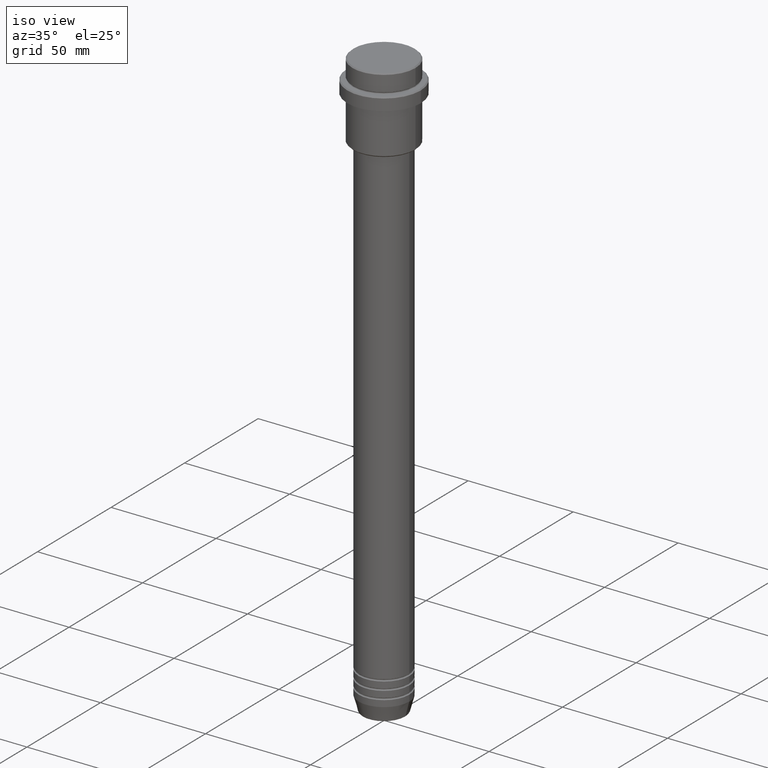
[diagram: clean part render]
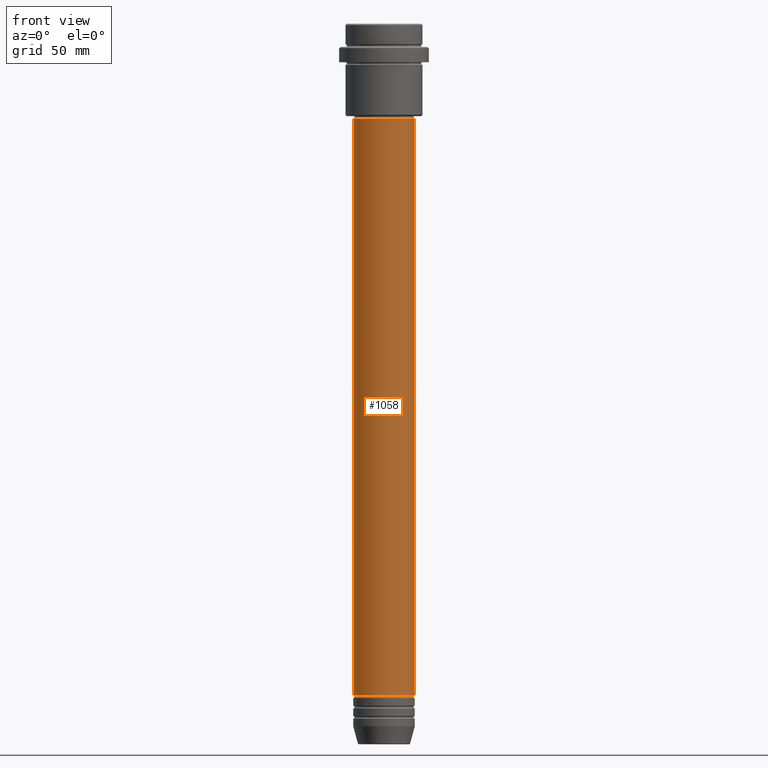
[diagram: tour spotlight — one face highlighted and labeled with its STEP entity id]
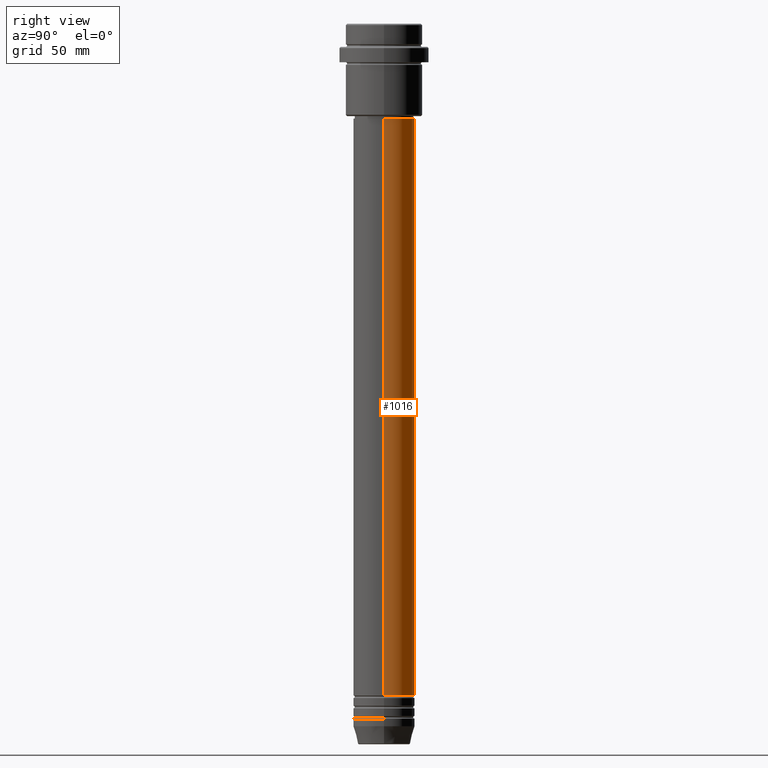
[diagram: tour spotlight — one face highlighted and labeled with its STEP entity id]
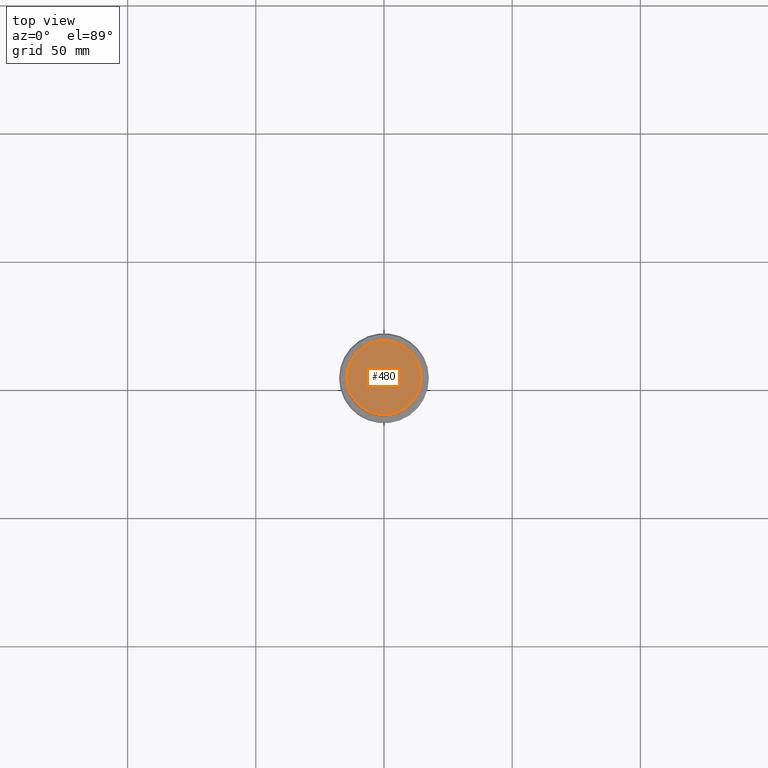
[diagram: tour spotlight — one face highlighted and labeled with its STEP entity id]
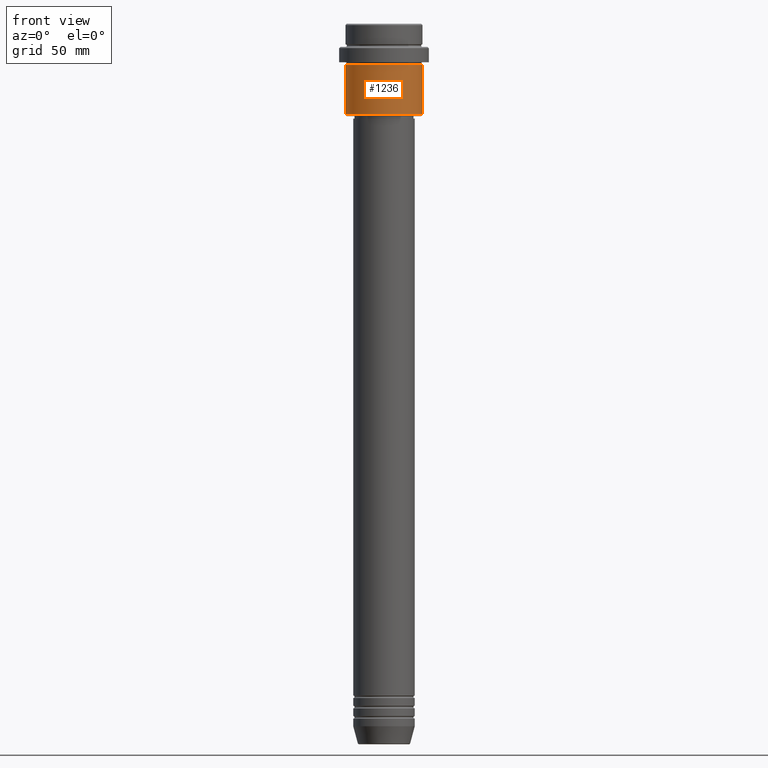
[diagram: tour spotlight — one face highlighted and labeled with its STEP entity id]
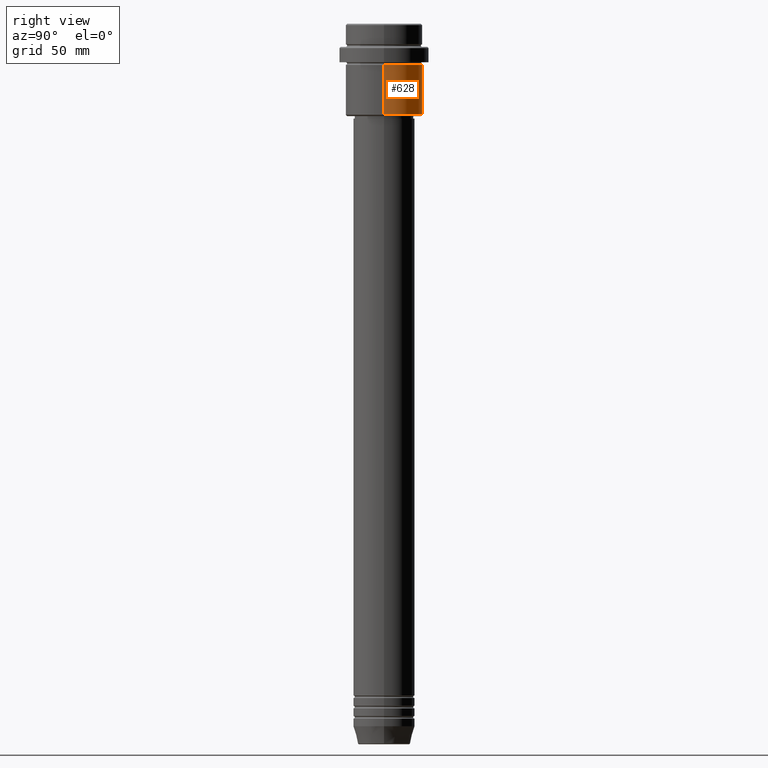
[diagram: tour spotlight — one face highlighted and labeled with its STEP entity id]
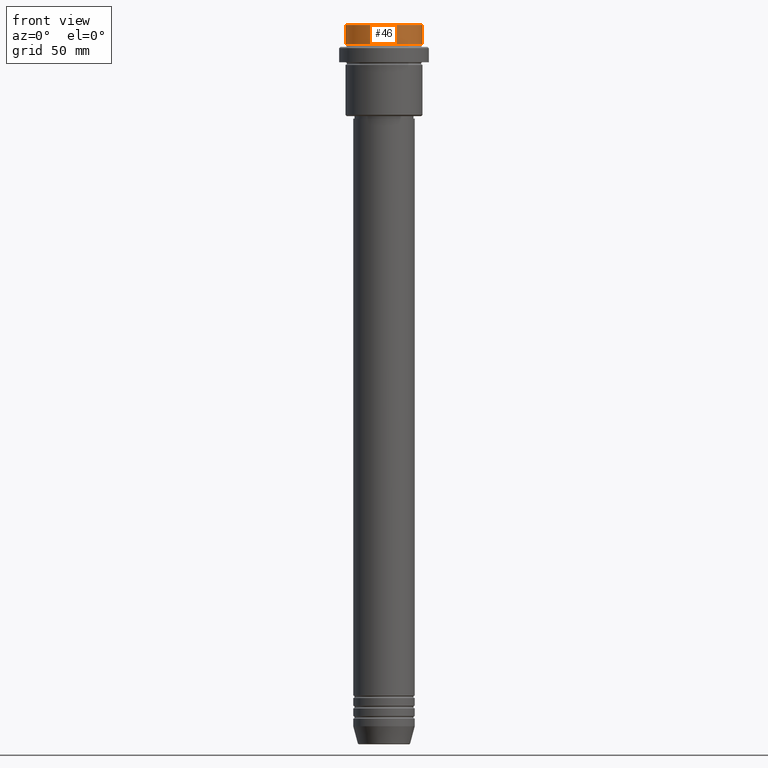
[diagram: tour spotlight — one face highlighted and labeled with its STEP entity id]
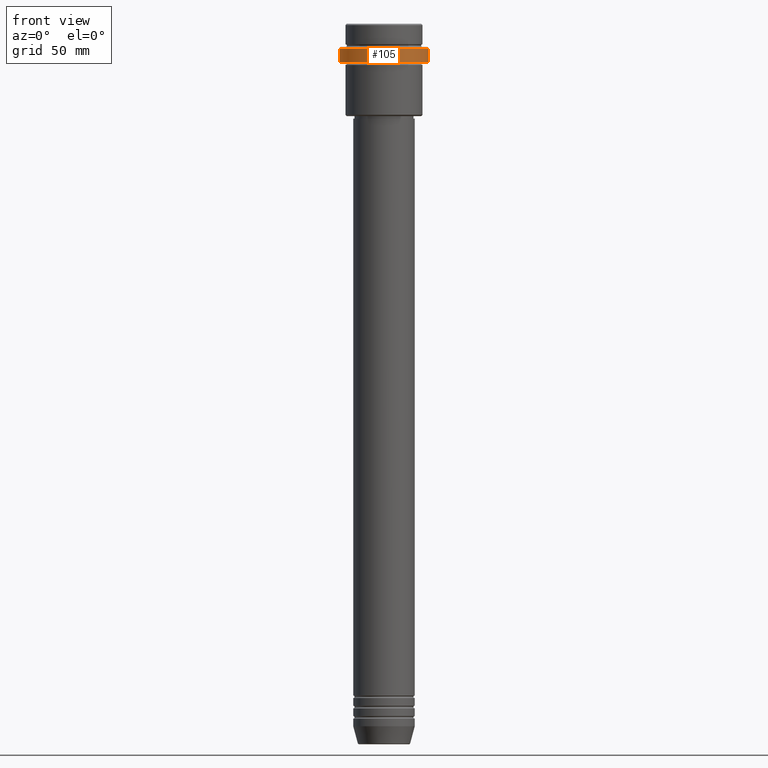
[diagram: tour spotlight — one face highlighted and labeled with its STEP entity id]
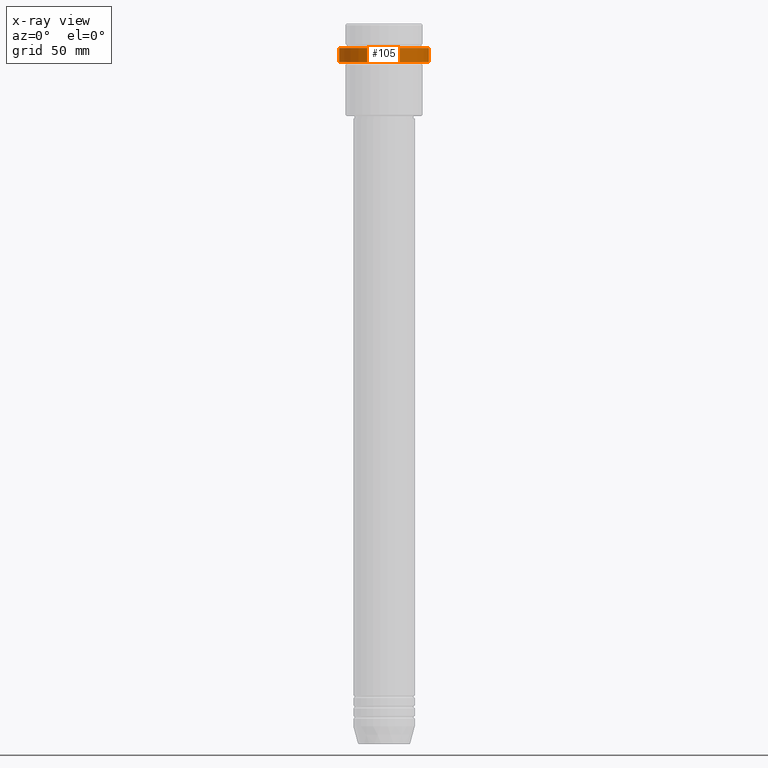
[diagram: x-ray of the same camera — body ghosted, this tour face saturated]
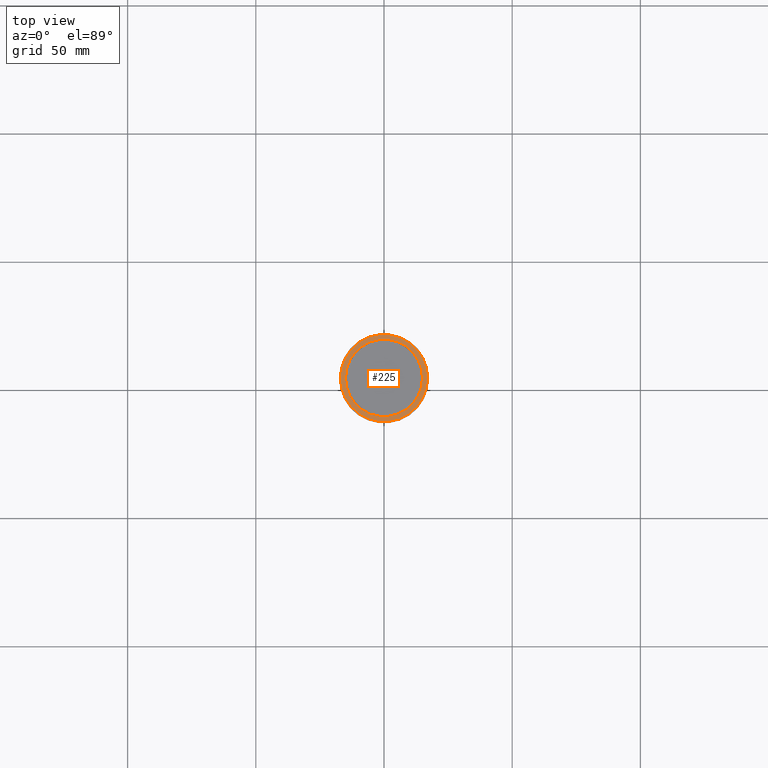
[diagram: tour spotlight — one face highlighted and labeled with its STEP entity id]
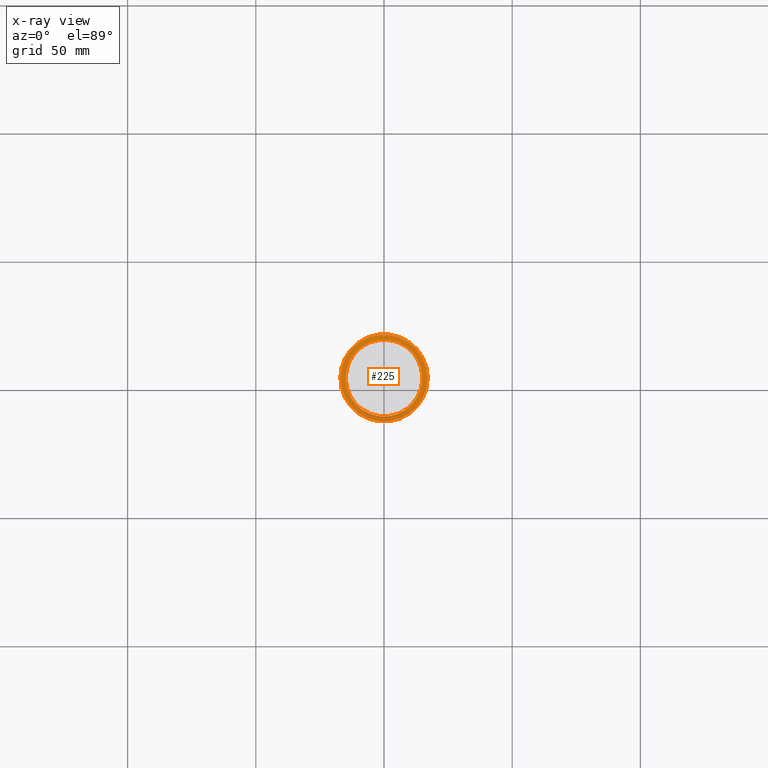
[diagram: x-ray of the same camera — body ghosted, this tour face saturated]
A machine part: a face-by-face anatomy tour. The part has 52 B-rep faces; the first image is the clean iso view, then the 8 largest visible faces are spotlighted one at a time (largest first), each with its STEP entity span.

Face 1 — front view, entity #1058. In plain terms, the highlighted cylindrical surface (edge-blend (fillet) strip) has radius 12 mm, axis along (-0, -0, 1).
Definition (entity closure, byte-faithful):
#8 = CARTESIAN_POINT ( 'NONE',  ( 0.000000000000000000, 0.000000000000000000, -261.9999999999998863 ) ) ;
#21 = DIRECTION ( 'NONE',  ( 1.000000000000000000, 0.000000000000000000, 0.000000000000000000 ) ) ;
#48 = VERTEX_POINT ( 'NONE', #626 ) ;
#52 = CARTESIAN_POINT ( 'NONE',  ( 12.00000000000000000, 0.000000000000000000, 0.000000000000000000 ) ) ;
#79 = AXIS2_PLACEMENT_3D ( 'NONE', #331, #117, #652 ) ;
#100 = AXIS2_PLACEMENT_3D ( 'NONE', #1082, #400, #615 ) ;
#106 = DIRECTION ( 'NONE',  ( -0.000000000000000000, -0.000000000000000000, 1.000000000000000000 ) ) ;
#117 = DIRECTION ( 'NONE',  ( -0.000000000000000000, -0.000000000000000000, 1.000000000000000000 ) ) ;
#122 = VECTOR ( 'NONE', #697, 1000.000000000000000 ) ;
#202 = ORIENTED_EDGE ( 'NONE', *, *, #412, .F. ) ;
#205 = EDGE_CURVE ( 'NONE', #967, #48, #207, .T. ) ;
#207 = LINE ( 'NONE', #1101, #1209 ) ;
#241 = ORIENTED_EDGE ( 'NONE', *, *, #260, .T. ) ;
#260 = EDGE_CURVE ( 'NONE', #932, #363, #941, .T. ) ;
#331 = CARTESIAN_POINT ( 'NONE',  ( 0.000000000000000000, 0.000000000000000000, 0.000000000000000000 ) ) ;
#339 = CARTESIAN_POINT ( 'NONE',  ( -12.00000000000000000, 1.469576158976823947E-15, -261.9999999999998863 ) ) ;
#363 = VERTEX_POINT ( 'NONE', #709 ) ;
#400 = DIRECTION ( 'NONE',  ( -0.000000000000000000, -0.000000000000000000, 1.000000000000000000 ) ) ;
#412 = EDGE_CURVE ( 'NONE', #48, #363, #1119, .T. ) ;
#506 = ORIENTED_EDGE ( 'NONE', *, *, #581, .T. ) ;
#562 = FACE_OUTER_BOUND ( 'NONE', #899, .T. ) ;
#581 = EDGE_CURVE ( 'NONE', #967, #932, #688, .T. ) ;
#615 = DIRECTION ( 'NONE',  ( 1.000000000000000000, 0.000000000000000000, 0.000000000000000000 ) ) ;
#626 = CARTESIAN_POINT ( 'NONE',  ( -11.99999999999999822, 1.469576158976823750E-15, -37.00000000000008527 ) ) ;
#630 = CARTESIAN_POINT ( 'NONE',  ( 12.00000000000000000, 0.000000000000000000, -261.9999999999998863 ) ) ;
#652 = DIRECTION ( 'NONE',  ( 1.000000000000000000, 0.000000000000000000, 0.000000000000000000 ) ) ;
#653 = DIRECTION ( 'NONE',  ( -0.000000000000000000, -0.000000000000000000, 1.000000000000000000 ) ) ;
#688 = CIRCLE ( 'NONE', #1254, 12.00000000000000000 ) ;
#697 = DIRECTION ( 'NONE',  ( -0.000000000000000000, -0.000000000000000000, 1.000000000000000000 ) ) ;
#709 = CARTESIAN_POINT ( 'NONE',  ( 11.99999999999999822, 0.000000000000000000, -37.00000000000008527 ) ) ;
#764 = ORIENTED_EDGE ( 'NONE', *, *, #205, .F. ) ;
#899 = EDGE_LOOP ( 'NONE', ( #764, #506, #241, #202 ) ) ;
#932 = VERTEX_POINT ( 'NONE', #630 ) ;
#941 = LINE ( 'NONE', #52, #122 ) ;
#967 = VERTEX_POINT ( 'NONE', #339 ) ;
#1013 = CYLINDRICAL_SURFACE ( 'NONE', #79, 12.00000000000000000 ) ;
#1058 = ADVANCED_FACE ( 'NONE', ( #562 ), #1013, .T. ) ;
#1082 = CARTESIAN_POINT ( 'NONE',  ( 0.000000000000000000, 0.000000000000000000, -37.00000000000008527 ) ) ;
#1101 = CARTESIAN_POINT ( 'NONE',  ( -12.00000000000000000, 1.469576158976823947E-15, 0.000000000000000000 ) ) ;
#1119 = CIRCLE ( 'NONE', #100, 11.99999999999999822 ) ;
#1209 = VECTOR ( 'NONE', #106, 1000.000000000000000 ) ;
#1254 = AXIS2_PLACEMENT_3D ( 'NONE', #8, #653, #21 ) ;

Face 2 — right view, entity #1016. In plain terms, the highlighted cylindrical surface (edge-blend (fillet) strip) has radius 12 mm, axis along (-0, -0, 1).
Definition (entity closure, byte-faithful):
#48 = VERTEX_POINT ( 'NONE', #626 ) ;
#52 = CARTESIAN_POINT ( 'NONE',  ( 12.00000000000000000, 0.000000000000000000, 0.000000000000000000 ) ) ;
#96 = ORIENTED_EDGE ( 'NONE', *, *, #260, .F. ) ;
#106 = DIRECTION ( 'NONE',  ( -0.000000000000000000, -0.000000000000000000, 1.000000000000000000 ) ) ;
#122 = VECTOR ( 'NONE', #697, 1000.000000000000000 ) ;
#159 = EDGE_CURVE ( 'NONE', #932, #967, #330, .T. ) ;
#205 = EDGE_CURVE ( 'NONE', #967, #48, #207, .T. ) ;
#207 = LINE ( 'NONE', #1101, #1209 ) ;
#260 = EDGE_CURVE ( 'NONE', #932, #363, #941, .T. ) ;
#313 = CARTESIAN_POINT ( 'NONE',  ( 0.000000000000000000, 0.000000000000000000, -261.9999999999998863 ) ) ;
#330 = CIRCLE ( 'NONE', #1015, 12.00000000000000000 ) ;
#339 = CARTESIAN_POINT ( 'NONE',  ( -12.00000000000000000, 1.469576158976823947E-15, -261.9999999999998863 ) ) ;
#363 = VERTEX_POINT ( 'NONE', #709 ) ;
#451 = DIRECTION ( 'NONE',  ( -0.000000000000000000, -0.000000000000000000, 1.000000000000000000 ) ) ;
#555 = CIRCLE ( 'NONE', #1051, 11.99999999999999822 ) ;
#567 = DIRECTION ( 'NONE',  ( -0.000000000000000000, -0.000000000000000000, 1.000000000000000000 ) ) ;
#576 = CARTESIAN_POINT ( 'NONE',  ( 0.000000000000000000, 0.000000000000000000, -37.00000000000008527 ) ) ;
#626 = CARTESIAN_POINT ( 'NONE',  ( -11.99999999999999822, 1.469576158976823750E-15, -37.00000000000008527 ) ) ;
#630 = CARTESIAN_POINT ( 'NONE',  ( 12.00000000000000000, 0.000000000000000000, -261.9999999999998863 ) ) ;
#683 = DIRECTION ( 'NONE',  ( 1.000000000000000000, 0.000000000000000000, 0.000000000000000000 ) ) ;
#697 = DIRECTION ( 'NONE',  ( -0.000000000000000000, -0.000000000000000000, 1.000000000000000000 ) ) ;
#709 = CARTESIAN_POINT ( 'NONE',  ( 11.99999999999999822, 0.000000000000000000, -37.00000000000008527 ) ) ;
#765 = CARTESIAN_POINT ( 'NONE',  ( 0.000000000000000000, 0.000000000000000000, 0.000000000000000000 ) ) ;
#905 = AXIS2_PLACEMENT_3D ( 'NONE', #765, #992, #1234 ) ;
#932 = VERTEX_POINT ( 'NONE', #630 ) ;
#939 = ORIENTED_EDGE ( 'NONE', *, *, #205, .T. ) ;
#941 = LINE ( 'NONE', #52, #122 ) ;
#967 = VERTEX_POINT ( 'NONE', #339 ) ;
#986 = FACE_OUTER_BOUND ( 'NONE', #1357, .T. ) ;
#992 = DIRECTION ( 'NONE',  ( -0.000000000000000000, -0.000000000000000000, 1.000000000000000000 ) ) ;
#1015 = AXIS2_PLACEMENT_3D ( 'NONE', #313, #451, #1302 ) ;
#1016 = ADVANCED_FACE ( 'NONE', ( #986 ), #1128, .T. ) ;
#1051 = AXIS2_PLACEMENT_3D ( 'NONE', #576, #567, #683 ) ;
#1055 = ORIENTED_EDGE ( 'NONE', *, *, #1115, .F. ) ;
#1101 = CARTESIAN_POINT ( 'NONE',  ( -12.00000000000000000, 1.469576158976823947E-15, 0.000000000000000000 ) ) ;
#1115 = EDGE_CURVE ( 'NONE', #363, #48, #555, .T. ) ;
#1128 = CYLINDRICAL_SURFACE ( 'NONE', #905, 12.00000000000000000 ) ;
#1209 = VECTOR ( 'NONE', #106, 1000.000000000000000 ) ;
#1234 = DIRECTION ( 'NONE',  ( 1.000000000000000000, 0.000000000000000000, 0.000000000000000000 ) ) ;
#1302 = DIRECTION ( 'NONE',  ( 1.000000000000000000, 0.000000000000000000, 0.000000000000000000 ) ) ;
#1349 = ORIENTED_EDGE ( 'NONE', *, *, #159, .T. ) ;
#1357 = EDGE_LOOP ( 'NONE', ( #1349, #939, #1055, #96 ) ) ;

Face 3 — top view, entity #480. In plain terms, the highlighted planar face has unit normal (0, -0, 1).
Definition (entity closure, byte-faithful):
#24 = ORIENTED_EDGE ( 'NONE', *, *, #1249, .T. ) ;
#86 = DIRECTION ( 'NONE',  ( 1.000000000000000000, 0.000000000000000000, 0.000000000000000000 ) ) ;
#279 = CIRCLE ( 'NONE', #350, 14.49999999999995559 ) ;
#350 = AXIS2_PLACEMENT_3D ( 'NONE', #1083, #1382, #612 ) ;
#392 = AXIS2_PLACEMENT_3D ( 'NONE', #637, #646, #86 ) ;
#401 = CARTESIAN_POINT ( 'NONE',  ( 0.000000000000000000, 0.000000000000000000, 0.000000000000000000 ) ) ;
#428 = PLANE ( 'NONE',  #392 ) ;
#480 = ADVANCED_FACE ( 'NONE', ( #1204 ), #428, .T. ) ;
#483 = ORIENTED_EDGE ( 'NONE', *, *, #1317, .T. ) ;
#511 = DIRECTION ( 'NONE',  ( 1.000000000000000000, 0.000000000000000000, 0.000000000000000000 ) ) ;
#571 = AXIS2_PLACEMENT_3D ( 'NONE', #401, #739, #511 ) ;
#612 = DIRECTION ( 'NONE',  ( 1.000000000000000000, 0.000000000000000000, 0.000000000000000000 ) ) ;
#637 = CARTESIAN_POINT ( 'NONE',  ( 0.000000000000000000, 0.000000000000000000, 0.000000000000000000 ) ) ;
#643 = EDGE_LOOP ( 'NONE', ( #24, #483 ) ) ;
#646 = DIRECTION ( 'NONE',  ( 0.000000000000000000, -0.000000000000000000, 1.000000000000000000 ) ) ;
#739 = DIRECTION ( 'NONE',  ( -0.000000000000000000, -0.000000000000000000, 1.000000000000000000 ) ) ;
#789 = CARTESIAN_POINT ( 'NONE',  ( 14.49999999999995559, 1.806354028742343041E-15, 0.000000000000000000 ) ) ;
#999 = CIRCLE ( 'NONE', #571, 14.49999999999995559 ) ;
#1083 = CARTESIAN_POINT ( 'NONE',  ( 0.000000000000000000, 0.000000000000000000, 0.000000000000000000 ) ) ;
#1141 = VERTEX_POINT ( 'NONE', #789 ) ;
#1200 = CARTESIAN_POINT ( 'NONE',  ( -14.49999999999995559, 0.000000000000000000, 0.000000000000000000 ) ) ;
#1204 = FACE_OUTER_BOUND ( 'NONE', #643, .T. ) ;
#1249 = EDGE_CURVE ( 'NONE', #1251, #1141, #279, .T. ) ;
#1251 = VERTEX_POINT ( 'NONE', #1200 ) ;
#1317 = EDGE_CURVE ( 'NONE', #1141, #1251, #999, .T. ) ;
#1382 = DIRECTION ( 'NONE',  ( -0.000000000000000000, -0.000000000000000000, 1.000000000000000000 ) ) ;

Face 4 — front view, entity #1236. In plain terms, the highlighted cylindrical surface (partial cylindrical patch) has radius 15 mm, axis along (-0, -0, 1).
Definition (entity closure, byte-faithful):
#29 = VERTEX_POINT ( 'NONE', #1059 ) ;
#81 = CYLINDRICAL_SURFACE ( 'NONE', #641, 15.00000000000000000 ) ;
#87 = VERTEX_POINT ( 'NONE', #533 ) ;
#147 = ORIENTED_EDGE ( 'NONE', *, *, #692, .T. ) ;
#171 = DIRECTION ( 'NONE',  ( 1.000000000000000000, 0.000000000000000000, 0.000000000000000000 ) ) ;
#201 = FACE_OUTER_BOUND ( 'NONE', #561, .T. ) ;
#206 = VERTEX_POINT ( 'NONE', #669 ) ;
#230 = CIRCLE ( 'NONE', #1096, 15.00000000000000178 ) ;
#233 = VECTOR ( 'NONE', #465, 1000.000000000000000 ) ;
#271 = CARTESIAN_POINT ( 'NONE',  ( -15.00000000000000000, 1.836970198721029589E-15, -35.50000000000005684 ) ) ;
#276 = CARTESIAN_POINT ( 'NONE',  ( 0.000000000000000000, 0.000000000000000000, -35.50000000000005684 ) ) ;
#283 = DIRECTION ( 'NONE',  ( -0.000000000000000000, -0.000000000000000000, 1.000000000000000000 ) ) ;
#385 = VERTEX_POINT ( 'NONE', #271 ) ;
#388 = DIRECTION ( 'NONE',  ( -0.000000000000000000, -0.000000000000000000, 1.000000000000000000 ) ) ;
#465 = DIRECTION ( 'NONE',  ( -0.000000000000000000, -0.000000000000000000, 1.000000000000000000 ) ) ;
#495 = ORIENTED_EDGE ( 'NONE', *, *, #1363, .F. ) ;
#533 = CARTESIAN_POINT ( 'NONE',  ( -15.00000000000000355, 1.836970198721029983E-15, -16.00000000000000000 ) ) ;
#554 = AXIS2_PLACEMENT_3D ( 'NONE', #276, #388, #1373 ) ;
#561 = EDGE_LOOP ( 'NONE', ( #1157, #147, #662, #495 ) ) ;
#641 = AXIS2_PLACEMENT_3D ( 'NONE', #746, #283, #1287 ) ;
#662 = ORIENTED_EDGE ( 'NONE', *, *, #774, .T. ) ;
#669 = CARTESIAN_POINT ( 'NONE',  ( 15.00000000000000178, 0.000000000000000000, -16.00000000000000000 ) ) ;
#692 = EDGE_CURVE ( 'NONE', #385, #29, #830, .T. ) ;
#746 = CARTESIAN_POINT ( 'NONE',  ( 0.000000000000000000, 0.000000000000000000, 0.000000000000000000 ) ) ;
#774 = EDGE_CURVE ( 'NONE', #29, #206, #940, .T. ) ;
#830 = CIRCLE ( 'NONE', #554, 15.00000000000000000 ) ;
#857 = LINE ( 'NONE', #1078, #1118 ) ;
#940 = LINE ( 'NONE', #1031, #233 ) ;
#962 = DIRECTION ( 'NONE',  ( -0.000000000000000000, -0.000000000000000000, 1.000000000000000000 ) ) ;
#1031 = CARTESIAN_POINT ( 'NONE',  ( 15.00000000000000000, 0.000000000000000000, 0.000000000000000000 ) ) ;
#1059 = CARTESIAN_POINT ( 'NONE',  ( 15.00000000000000000, 0.000000000000000000, -35.50000000000005684 ) ) ;
#1078 = CARTESIAN_POINT ( 'NONE',  ( -15.00000000000000000, 1.836970198721029589E-15, 0.000000000000000000 ) ) ;
#1096 = AXIS2_PLACEMENT_3D ( 'NONE', #1281, #1270, #171 ) ;
#1118 = VECTOR ( 'NONE', #962, 1000.000000000000000 ) ;
#1157 = ORIENTED_EDGE ( 'NONE', *, *, #1291, .F. ) ;
#1236 = ADVANCED_FACE ( 'NONE', ( #201 ), #81, .T. ) ;
#1270 = DIRECTION ( 'NONE',  ( -0.000000000000000000, -0.000000000000000000, 1.000000000000000000 ) ) ;
#1281 = CARTESIAN_POINT ( 'NONE',  ( 0.000000000000000000, 0.000000000000000000, -16.00000000000000000 ) ) ;
#1287 = DIRECTION ( 'NONE',  ( 1.000000000000000000, 0.000000000000000000, 0.000000000000000000 ) ) ;
#1291 = EDGE_CURVE ( 'NONE', #385, #87, #857, .T. ) ;
#1363 = EDGE_CURVE ( 'NONE', #87, #206, #230, .T. ) ;
#1373 = DIRECTION ( 'NONE',  ( -1.000000000000000000, 0.000000000000000000, 0.000000000000000000 ) ) ;

Face 5 — right view, entity #628. In plain terms, the highlighted cylindrical surface (partial cylindrical patch) has radius 15 mm, axis along (-0, -0, 1).
Definition (entity closure, byte-faithful):
#29 = VERTEX_POINT ( 'NONE', #1059 ) ;
#87 = VERTEX_POINT ( 'NONE', #533 ) ;
#206 = VERTEX_POINT ( 'NONE', #669 ) ;
#233 = VECTOR ( 'NONE', #465, 1000.000000000000000 ) ;
#244 = DIRECTION ( 'NONE',  ( 1.000000000000000000, 0.000000000000000000, 0.000000000000000000 ) ) ;
#271 = CARTESIAN_POINT ( 'NONE',  ( -15.00000000000000000, 1.836970198721029589E-15, -35.50000000000005684 ) ) ;
#346 = DIRECTION ( 'NONE',  ( -0.000000000000000000, -0.000000000000000000, 1.000000000000000000 ) ) ;
#347 = ORIENTED_EDGE ( 'NONE', *, *, #1291, .T. ) ;
#379 = EDGE_CURVE ( 'NONE', #29, #385, #711, .T. ) ;
#385 = VERTEX_POINT ( 'NONE', #271 ) ;
#432 = DIRECTION ( 'NONE',  ( 1.000000000000000000, 0.000000000000000000, 0.000000000000000000 ) ) ;
#440 = CARTESIAN_POINT ( 'NONE',  ( 0.000000000000000000, 0.000000000000000000, 0.000000000000000000 ) ) ;
#446 = CYLINDRICAL_SURFACE ( 'NONE', #667, 15.00000000000000000 ) ;
#465 = DIRECTION ( 'NONE',  ( -0.000000000000000000, -0.000000000000000000, 1.000000000000000000 ) ) ;
#498 = ORIENTED_EDGE ( 'NONE', *, *, #379, .T. ) ;
#533 = CARTESIAN_POINT ( 'NONE',  ( -15.00000000000000355, 1.836970198721029983E-15, -16.00000000000000000 ) ) ;
#628 = ADVANCED_FACE ( 'NONE', ( #772 ), #446, .T. ) ;
#665 = EDGE_CURVE ( 'NONE', #206, #87, #902, .T. ) ;
#667 = AXIS2_PLACEMENT_3D ( 'NONE', #440, #346, #432 ) ;
#669 = CARTESIAN_POINT ( 'NONE',  ( 15.00000000000000178, 0.000000000000000000, -16.00000000000000000 ) ) ;
#711 = CIRCLE ( 'NONE', #853, 15.00000000000000000 ) ;
#772 = FACE_OUTER_BOUND ( 'NONE', #1354, .T. ) ;
#774 = EDGE_CURVE ( 'NONE', #29, #206, #940, .T. ) ;
#777 = CARTESIAN_POINT ( 'NONE',  ( 0.000000000000000000, 0.000000000000000000, -16.00000000000000000 ) ) ;
#808 = DIRECTION ( 'NONE',  ( -0.000000000000000000, -0.000000000000000000, 1.000000000000000000 ) ) ;
#815 = DIRECTION ( 'NONE',  ( -1.000000000000000000, 0.000000000000000000, 0.000000000000000000 ) ) ;
#837 = ORIENTED_EDGE ( 'NONE', *, *, #774, .F. ) ;
#853 = AXIS2_PLACEMENT_3D ( 'NONE', #1362, #808, #815 ) ;
#857 = LINE ( 'NONE', #1078, #1118 ) ;
#902 = CIRCLE ( 'NONE', #1232, 15.00000000000000178 ) ;
#940 = LINE ( 'NONE', #1031, #233 ) ;
#962 = DIRECTION ( 'NONE',  ( -0.000000000000000000, -0.000000000000000000, 1.000000000000000000 ) ) ;
#1031 = CARTESIAN_POINT ( 'NONE',  ( 15.00000000000000000, 0.000000000000000000, 0.000000000000000000 ) ) ;
#1059 = CARTESIAN_POINT ( 'NONE',  ( 15.00000000000000000, 0.000000000000000000, -35.50000000000005684 ) ) ;
#1078 = CARTESIAN_POINT ( 'NONE',  ( -15.00000000000000000, 1.836970198721029589E-15, 0.000000000000000000 ) ) ;
#1118 = VECTOR ( 'NONE', #962, 1000.000000000000000 ) ;
#1232 = AXIS2_PLACEMENT_3D ( 'NONE', #777, #1242, #244 ) ;
#1242 = DIRECTION ( 'NONE',  ( -0.000000000000000000, -0.000000000000000000, 1.000000000000000000 ) ) ;
#1285 = ORIENTED_EDGE ( 'NONE', *, *, #665, .F. ) ;
#1291 = EDGE_CURVE ( 'NONE', #385, #87, #857, .T. ) ;
#1354 = EDGE_LOOP ( 'NONE', ( #498, #347, #1285, #837 ) ) ;
#1362 = CARTESIAN_POINT ( 'NONE',  ( 0.000000000000000000, 0.000000000000000000, -35.50000000000005684 ) ) ;

Face 6 — front view, entity #46. In plain terms, the highlighted cylindrical surface (partial cylindrical patch) has radius 15 mm, axis along (-0, -0, 1).
Definition (entity closure, byte-faithful):
#26 = EDGE_CURVE ( 'NONE', #475, #788, #838, .T. ) ;
#46 = ADVANCED_FACE ( 'NONE', ( #1286 ), #846, .T. ) ;
#47 = DIRECTION ( 'NONE',  ( -0.000000000000000000, -0.000000000000000000, 1.000000000000000000 ) ) ;
#184 = AXIS2_PLACEMENT_3D ( 'NONE', #301, #1194, #193 ) ;
#193 = DIRECTION ( 'NONE',  ( 1.000000000000000000, 0.000000000000000000, 0.000000000000000000 ) ) ;
#204 = CARTESIAN_POINT ( 'NONE',  ( -15.00000000000000000, 1.836970198721029589E-15, -0.5000000000000386358 ) ) ;
#253 = DIRECTION ( 'NONE',  ( -0.000000000000000000, -0.000000000000000000, 1.000000000000000000 ) ) ;
#289 = DIRECTION ( 'NONE',  ( 1.000000000000000000, 0.000000000000000000, 0.000000000000000000 ) ) ;
#293 = EDGE_CURVE ( 'NONE', #893, #475, #371, .T. ) ;
#301 = CARTESIAN_POINT ( 'NONE',  ( 0.000000000000000000, 0.000000000000000000, 0.000000000000000000 ) ) ;
#305 = CIRCLE ( 'NONE', #1411, 15.00000000000000000 ) ;
#356 = EDGE_CURVE ( 'NONE', #893, #455, #384, .T. ) ;
#371 = CIRCLE ( 'NONE', #1322, 15.00000000000000000 ) ;
#384 = LINE ( 'NONE', #1268, #1073 ) ;
#455 = VERTEX_POINT ( 'NONE', #204 ) ;
#475 = VERTEX_POINT ( 'NONE', #624 ) ;
#624 = CARTESIAN_POINT ( 'NONE',  ( 15.00000000000000000, 0.000000000000000000, -7.999999999999998224 ) ) ;
#715 = DIRECTION ( 'NONE',  ( -0.000000000000000000, -0.000000000000000000, 1.000000000000000000 ) ) ;
#719 = CARTESIAN_POINT ( 'NONE',  ( 0.000000000000000000, 0.000000000000000000, -7.999999999999998224 ) ) ;
#749 = CARTESIAN_POINT ( 'NONE',  ( -15.00000000000000000, 1.836970198721029589E-15, -7.999999999999998224 ) ) ;
#759 = VECTOR ( 'NONE', #715, 1000.000000000000000 ) ;
#770 = ORIENTED_EDGE ( 'NONE', *, *, #1383, .T. ) ;
#782 = ORIENTED_EDGE ( 'NONE', *, *, #293, .T. ) ;
#788 = VERTEX_POINT ( 'NONE', #917 ) ;
#822 = CARTESIAN_POINT ( 'NONE',  ( 15.00000000000000000, 0.000000000000000000, 0.000000000000000000 ) ) ;
#833 = DIRECTION ( 'NONE',  ( 0.000000000000000000, 0.000000000000000000, -1.000000000000000000 ) ) ;
#838 = LINE ( 'NONE', #822, #759 ) ;
#846 = CYLINDRICAL_SURFACE ( 'NONE', #184, 15.00000000000000000 ) ;
#893 = VERTEX_POINT ( 'NONE', #749 ) ;
#917 = CARTESIAN_POINT ( 'NONE',  ( 15.00000000000000000, 0.000000000000000000, -0.5000000000000386358 ) ) ;
#920 = EDGE_LOOP ( 'NONE', ( #1282, #782, #1386, #770 ) ) ;
#1073 = VECTOR ( 'NONE', #47, 1000.000000000000000 ) ;
#1194 = DIRECTION ( 'NONE',  ( -0.000000000000000000, -0.000000000000000000, 1.000000000000000000 ) ) ;
#1264 = DIRECTION ( 'NONE',  ( 1.000000000000000000, 0.000000000000000000, 0.000000000000000000 ) ) ;
#1268 = CARTESIAN_POINT ( 'NONE',  ( -15.00000000000000000, 1.836970198721029589E-15, 0.000000000000000000 ) ) ;
#1282 = ORIENTED_EDGE ( 'NONE', *, *, #356, .F. ) ;
#1286 = FACE_OUTER_BOUND ( 'NONE', #920, .T. ) ;
#1322 = AXIS2_PLACEMENT_3D ( 'NONE', #719, #253, #1264 ) ;
#1383 = EDGE_CURVE ( 'NONE', #788, #455, #305, .T. ) ;
#1386 = ORIENTED_EDGE ( 'NONE', *, *, #26, .T. ) ;
#1387 = CARTESIAN_POINT ( 'NONE',  ( 0.000000000000000000, 0.000000000000000000, -0.5000000000000386358 ) ) ;
#1411 = AXIS2_PLACEMENT_3D ( 'NONE', #1387, #833, #289 ) ;

Face 7 — front view, entity #105. An x-ray twin of the same camera follows (body ghosted, this face saturated) — the face is partly hidden behind the body. In plain terms, the highlighted cylindrical surface (partial cylindrical patch) has radius 17.5 mm, axis along (-0, -0, 1).
Definition (entity closure, byte-faithful):
#9 = ORIENTED_EDGE ( 'NONE', *, *, #631, .T. ) ;
#11 = CARTESIAN_POINT ( 'NONE',  ( 17.50000000000000000, 0.000000000000000000, -15.00000000000000000 ) ) ;
#105 = ADVANCED_FACE ( 'NONE', ( #638 ), #1313, .T. ) ;
#114 = DIRECTION ( 'NONE',  ( -0.000000000000000000, -0.000000000000000000, 1.000000000000000000 ) ) ;
#118 = CARTESIAN_POINT ( 'NONE',  ( -17.50000000000000000, 2.143131898507868248E-15, 0.000000000000000000 ) ) ;
#142 = VECTOR ( 'NONE', #334, 1000.000000000000000 ) ;
#145 = VERTEX_POINT ( 'NONE', #760 ) ;
#281 = VERTEX_POINT ( 'NONE', #287 ) ;
#287 = CARTESIAN_POINT ( 'NONE',  ( -17.50000000000000000, 2.143131898507868248E-15, -15.00000000000000000 ) ) ;
#291 = CARTESIAN_POINT ( 'NONE',  ( 0.000000000000000000, 0.000000000000000000, -9.500000000000026645 ) ) ;
#334 = DIRECTION ( 'NONE',  ( -0.000000000000000000, -0.000000000000000000, 1.000000000000000000 ) ) ;
#436 = CARTESIAN_POINT ( 'NONE',  ( 0.000000000000000000, 0.000000000000000000, -15.00000000000000000 ) ) ;
#499 = DIRECTION ( 'NONE',  ( 1.000000000000000000, 0.000000000000000000, 0.000000000000000000 ) ) ;
#551 = EDGE_CURVE ( 'NONE', #281, #742, #666, .T. ) ;
#566 = VERTEX_POINT ( 'NONE', #11 ) ;
#574 = CIRCLE ( 'NONE', #928, 17.50000000000000000 ) ;
#596 = CIRCLE ( 'NONE', #1100, 17.50000000000000000 ) ;
#631 = EDGE_CURVE ( 'NONE', #566, #145, #1129, .T. ) ;
#638 = FACE_OUTER_BOUND ( 'NONE', #1134, .T. ) ;
#666 = LINE ( 'NONE', #118, #952 ) ;
#678 = ORIENTED_EDGE ( 'NONE', *, *, #966, .T. ) ;
#681 = DIRECTION ( 'NONE',  ( 1.000000000000000000, 0.000000000000000000, 0.000000000000000000 ) ) ;
#742 = VERTEX_POINT ( 'NONE', #814 ) ;
#755 = DIRECTION ( 'NONE',  ( -0.000000000000000000, -0.000000000000000000, 1.000000000000000000 ) ) ;
#760 = CARTESIAN_POINT ( 'NONE',  ( 17.50000000000000000, 0.000000000000000000, -9.500000000000026645 ) ) ;
#814 = CARTESIAN_POINT ( 'NONE',  ( -17.50000000000000000, 2.143131898507868248E-15, -9.500000000000026645 ) ) ;
#818 = EDGE_CURVE ( 'NONE', #145, #742, #596, .T. ) ;
#887 = DIRECTION ( 'NONE',  ( 1.000000000000000000, 0.000000000000000000, 0.000000000000000000 ) ) ;
#928 = AXIS2_PLACEMENT_3D ( 'NONE', #436, #755, #887 ) ;
#952 = VECTOR ( 'NONE', #114, 1000.000000000000000 ) ;
#966 = EDGE_CURVE ( 'NONE', #281, #566, #574, .T. ) ;
#972 = AXIS2_PLACEMENT_3D ( 'NONE', #983, #1243, #681 ) ;
#983 = CARTESIAN_POINT ( 'NONE',  ( 0.000000000000000000, 0.000000000000000000, 0.000000000000000000 ) ) ;
#1034 = ORIENTED_EDGE ( 'NONE', *, *, #818, .T. ) ;
#1093 = DIRECTION ( 'NONE',  ( 0.000000000000000000, 0.000000000000000000, -1.000000000000000000 ) ) ;
#1100 = AXIS2_PLACEMENT_3D ( 'NONE', #291, #1093, #499 ) ;
#1129 = LINE ( 'NONE', #1318, #142 ) ;
#1134 = EDGE_LOOP ( 'NONE', ( #1149, #678, #9, #1034 ) ) ;
#1149 = ORIENTED_EDGE ( 'NONE', *, *, #551, .F. ) ;
#1243 = DIRECTION ( 'NONE',  ( -0.000000000000000000, -0.000000000000000000, 1.000000000000000000 ) ) ;
#1313 = CYLINDRICAL_SURFACE ( 'NONE', #972, 17.50000000000000000 ) ;
#1318 = CARTESIAN_POINT ( 'NONE',  ( 17.50000000000000000, 0.000000000000000000, 0.000000000000000000 ) ) ;

Face 8 — top view, entity #225. An x-ray twin of the same camera follows (body ghosted, this face saturated) — the face is partly hidden behind the body. In plain terms, the highlighted planar face has unit normal (0, -0, 1).
Definition (entity closure, byte-faithful):
#2 = CARTESIAN_POINT ( 'NONE',  ( 0.000000000000000000, 14.49999999999999467, -9.000000000000000000 ) ) ;
#10 = CARTESIAN_POINT ( 'NONE',  ( 0.000000000000000000, 0.000000000000000000, -9.000000000000000000 ) ) ;
#36 = AXIS2_PLACEMENT_3D ( 'NONE', #1203, #981, #1085 ) ;
#134 = FACE_BOUND ( 'NONE', #800, .T. ) ;
#216 = CIRCLE ( 'NONE', #1278, 16.99999999999996092 ) ;
#225 = ADVANCED_FACE ( 'NONE', ( #240, #134 ), #1014, .T. ) ;
#237 = DIRECTION ( 'NONE',  ( 1.000000000000000000, 0.000000000000000000, 0.000000000000000000 ) ) ;
#240 = FACE_OUTER_BOUND ( 'NONE', #360, .T. ) ;
#360 = EDGE_LOOP ( 'NONE', ( #1036, #1246 ) ) ;
#416 = ORIENTED_EDGE ( 'NONE', *, *, #1364, .T. ) ;
#435 = AXIS2_PLACEMENT_3D ( 'NONE', #2, #1160, #609 ) ;
#479 = CIRCLE ( 'NONE', #924, 14.99999999999999289 ) ;
#519 = CARTESIAN_POINT ( 'NONE',  ( 0.000000000000000000, 0.000000000000000000, -9.000000000000000000 ) ) ;
#530 = DIRECTION ( 'NONE',  ( 1.000000000000000000, 0.000000000000000000, 0.000000000000000000 ) ) ;
#587 = ORIENTED_EDGE ( 'NONE', *, *, #1038, .T. ) ;
#606 = CARTESIAN_POINT ( 'NONE',  ( 0.000000000000000000, 0.000000000000000000, -9.000000000000000000 ) ) ;
#609 = DIRECTION ( 'NONE',  ( 1.000000000000000000, 0.000000000000000000, 0.000000000000000000 ) ) ;
#702 = CARTESIAN_POINT ( 'NONE',  ( -16.99999999999996092, 0.000000000000000000, -9.000000000000000000 ) ) ;
#726 = VERTEX_POINT ( 'NONE', #702 ) ;
#732 = CIRCLE ( 'NONE', #36, 16.99999999999996092 ) ;
#800 = EDGE_LOOP ( 'NONE', ( #587, #416 ) ) ;
#911 = EDGE_CURVE ( 'NONE', #1068, #726, #216, .T. ) ;
#915 = CARTESIAN_POINT ( 'NONE',  ( 14.99999999999999289, 0.000000000000000000, -9.000000000000000000 ) ) ;
#924 = AXIS2_PLACEMENT_3D ( 'NONE', #606, #955, #943 ) ;
#936 = EDGE_CURVE ( 'NONE', #726, #1068, #732, .T. ) ;
#943 = DIRECTION ( 'NONE',  ( 1.000000000000000000, 0.000000000000000000, 0.000000000000000000 ) ) ;
#955 = DIRECTION ( 'NONE',  ( 0.000000000000000000, 0.000000000000000000, -1.000000000000000000 ) ) ;
#981 = DIRECTION ( 'NONE',  ( -0.000000000000000000, -0.000000000000000000, 1.000000000000000000 ) ) ;
#1003 = CARTESIAN_POINT ( 'NONE',  ( 16.99999999999996092, 2.112515728529182095E-15, -9.000000000000000000 ) ) ;
#1014 = PLANE ( 'NONE',  #435 ) ;
#1036 = ORIENTED_EDGE ( 'NONE', *, *, #936, .T. ) ;
#1038 = EDGE_CURVE ( 'NONE', #1206, #1337, #1147, .T. ) ;
#1068 = VERTEX_POINT ( 'NONE', #1003 ) ;
#1085 = DIRECTION ( 'NONE',  ( 1.000000000000000000, 0.000000000000000000, 0.000000000000000000 ) ) ;
#1091 = CARTESIAN_POINT ( 'NONE',  ( -14.99999999999999289, 1.836970198721028800E-15, -9.000000000000000000 ) ) ;
#1147 = CIRCLE ( 'NONE', #1213, 14.99999999999999289 ) ;
#1160 = DIRECTION ( 'NONE',  ( 0.000000000000000000, -0.000000000000000000, 1.000000000000000000 ) ) ;
#1203 = CARTESIAN_POINT ( 'NONE',  ( 0.000000000000000000, 0.000000000000000000, -9.000000000000000000 ) ) ;
#1206 = VERTEX_POINT ( 'NONE', #915 ) ;
#1207 = DIRECTION ( 'NONE',  ( 0.000000000000000000, 0.000000000000000000, -1.000000000000000000 ) ) ;
#1213 = AXIS2_PLACEMENT_3D ( 'NONE', #10, #1207, #237 ) ;
#1246 = ORIENTED_EDGE ( 'NONE', *, *, #911, .T. ) ;
#1278 = AXIS2_PLACEMENT_3D ( 'NONE', #519, #1295, #530 ) ;
#1295 = DIRECTION ( 'NONE',  ( -0.000000000000000000, -0.000000000000000000, 1.000000000000000000 ) ) ;
#1337 = VERTEX_POINT ( 'NONE', #1091 ) ;
#1364 = EDGE_CURVE ( 'NONE', #1337, #1206, #479, .T. ) ;